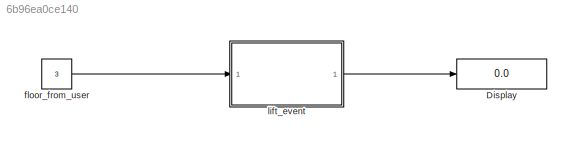
MODEL slx_6b96ea0ce140
KIND model
CONFIG AbsTol = auto
CONFIG EnableMultiTasking = off
CONFIG FixedStep = auto
CONFIG MaxStep = auto
CONFIG MinStep = auto
CONFIG RelTol = 1e-3
CONFIG SampleTimeConstraint = Unconstrained
CONFIG SolverName = VariableStepAuto
CONFIG StartTime = 0.0
CONFIG StopTime = 10.0
BLOCK [Display] Display
  Decimation = 1
  Ports = [1]
BLOCK [Constant] floor_from_user
  Value = 3
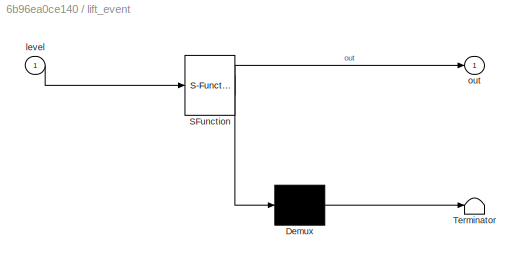
BLOCK [SubSystem] lift_event
  ErrorFcn = Stateflow.Translate.translate
  PermitHierarchicalResolution = ExplicitOnly
  Ports = [1, 1]
  RequestExecContextInheritance = off
  SFBlockType = Chart
  TreatAsAtomicUnit = on
BLOCK [Demux] lift_event/ Demux 
  Outputs = 1
  Ports = [1, 1]
BLOCK [S-Function] lift_event/ SFunction 
  EnableBusSupport = on
  FunctionName = sf_sfun
  PortCounts = [1 2]
  Ports = [1, 2]
  SFcnIsStateOwnerBlock = off
  SFunctionDeploymentMode = off
  Tag = Stateflow S-Function 3
BLOCK [Terminator] lift_event/ Terminator 
BLOCK [Inport] lift_event/level
BLOCK [Outport] lift_event/out
LINE floor_from_user:1 -> lift_event:1
LINE lift_event:1 -> Display:1
CHART lift_event states=10 transitions=17
  STATE_LABEL 'control'
  STATE_LABEL 'stop\nout=curr_st;'
  STATE_LABEL 'up\nentry:\ncurr_st=0;\ndu:\ncurr_st=curr_st+1;\n'
  STATE_LABEL 'down\nentry:\ncurr_st=0;\ndu:\ncurr_st=curr_st-1;\n'
  STATE_LABEL '[level==curr_st]'
  STATE_LABEL '[curr_st<level]{send(up,floor_control)}'
  STATE_LABEL '[curr_st>level]/{send(down,floor_control)}'
  STATE_LABEL '[curr_st==level]'
  STATE_LABEL '[curr_st==level]'
  STATE_LABEL 'stop\nout=curr_st;'
  STATE_LABEL 'up\nentry:\ncurr_st=0;\ndu:\ncurr_st=curr_st+1;\n'
  STATE_LABEL 'down\nentry:\ncurr_st=0;\ndu:\ncurr_st=curr_st-1;\n'
  STATE_LABEL 'floor_control'
  STATE_LABEL 'floor4\nentry:\nout=4;\n'
  STATE_LABEL 'floor5\nentry:\nout=5;\n'
  STATE_LABEL 'floor2\nentry:\nout=2;\n'
  STATE_LABEL 'floor3\nentry:\nout=3;\n'
  STATE_LABEL 'floor1\nentry:\ncurr_st=1;\nout=1;'
  STATE_LABEL 'up'
  STATE_LABEL 'up'
  STATE_LABEL 'down'
  STATE_LABEL 'up'
  STATE_LABEL 'up'
  STATE_LABEL 'up'
  STATE_LABEL 'down'
  STATE_LABEL 'down'
  STATE_LABEL 'down'
  STATE_LABEL 'down'
  STATE_LABEL 'floor4\nentry:\nout=4;\n'
  STATE_LABEL 'floor5\nentry:\nout=5;\n'
  STATE_LABEL 'floor2\nentry:\nout=2;\n'
  STATE_LABEL 'floor3\nentry:\nout=3;\n'
  STATE_LABEL 'floor1\nentry:\ncurr_st=1;\nout=1;'
CHART  states=0 transitions=0
